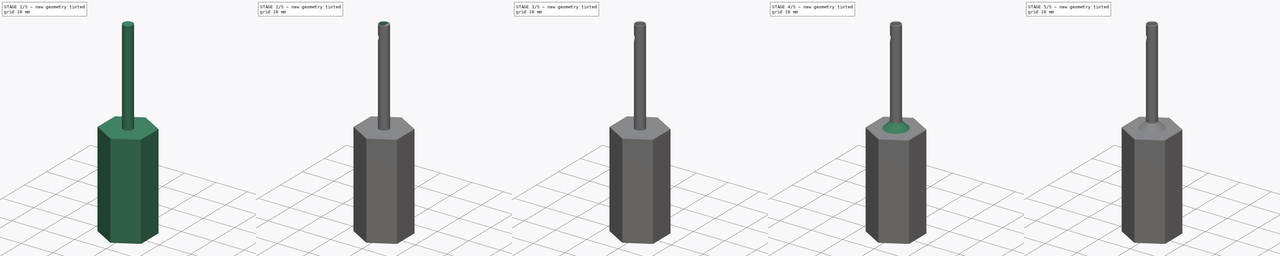
[diagram: build sequence overview — one tinted view per stage of 5, left to right]
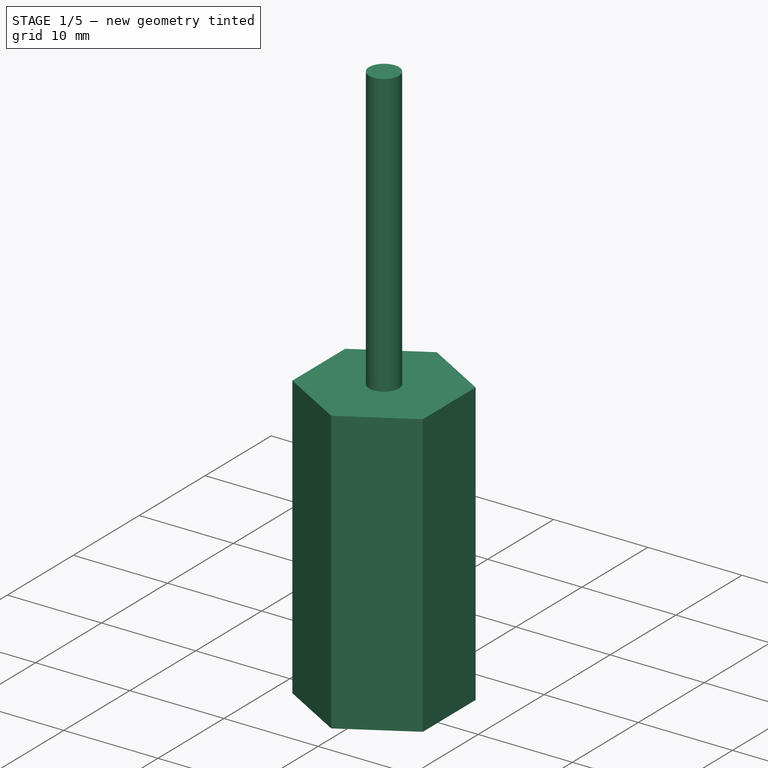
[diagram: stage 1 of 5 — iso view after this stage's code; geometry added in this stage tinted green]
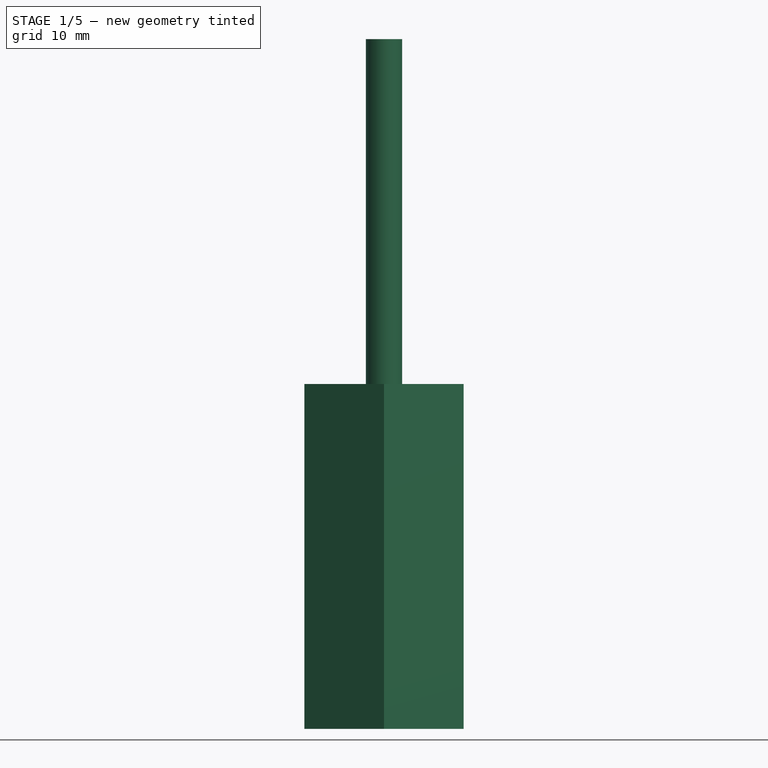
[diagram: stage 1 of 5 — front view after this stage's code; geometry added in this stage tinted green]
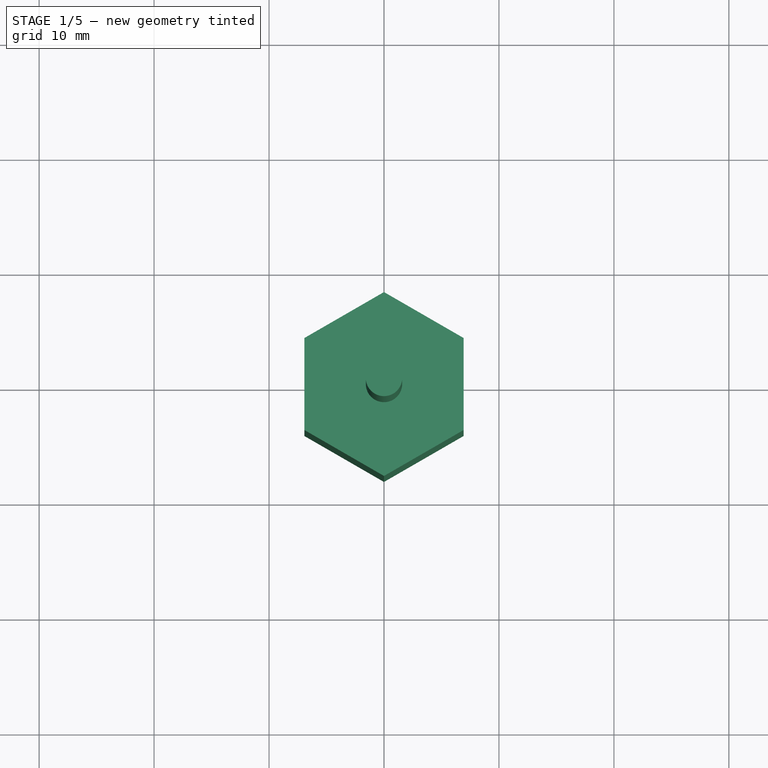
[diagram: stage 1 of 5 — top view after this stage's code; geometry added in this stage tinted green]
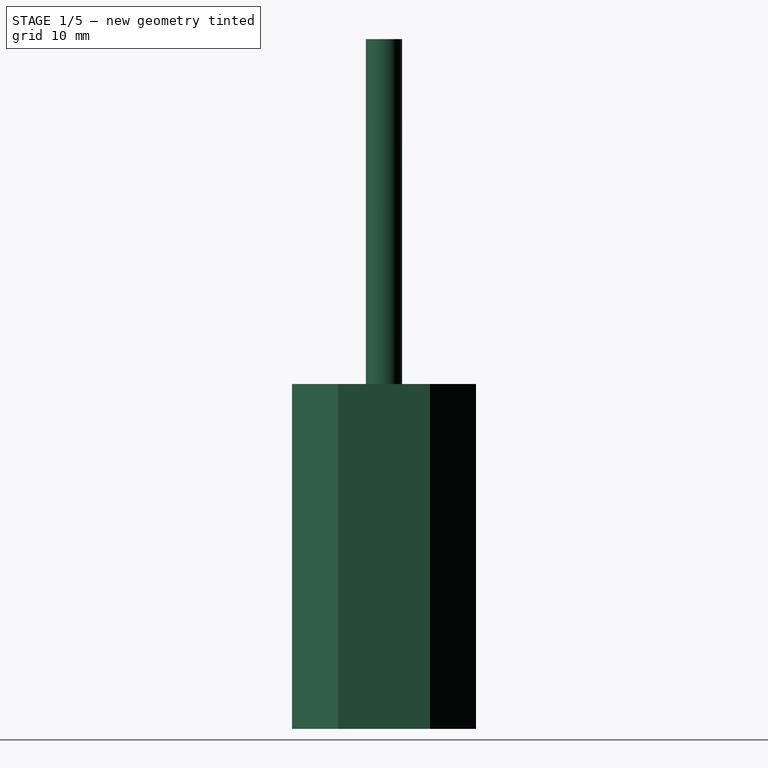
[diagram: stage 1 of 5 — right view after this stage's code; geometry added in this stage tinted green]
FCSTD DOCUMENT  (FreeCAD 0.18R16146 (Git))
Label: wire_wrap_tool
License: All rights reserved
LicenseURL: http://en.wikipedia.org/wiki/All_rights_reserved
objects: Sketcher::SketchObject×8, PartDesign::Pocket×6, PartDesign::Fillet×5, PartDesign::Chamfer×3, PartDesign::Pad×2, PartDesign::Body×1, Part::Feature×1
note: 34 computed .brp shape members not serialized (recipe doc carries the construction recipe); baked Part::Feature solids carry a one-line shape summary decoded from their .brp

FEATURE [Sketcher::SketchObject] Sketch
  MapMode = 5
  Support = -> [XY_Plane]
  sketch-geometry (7):
    g0: LineSegment StartX=6.9282 StartY=-4 StartZ=0 EndX=6.9282 EndY=4 EndZ=0
    g1: LineSegment StartX=6.9282 StartY=4 StartZ=0 EndX=1.33e-14 EndY=8 EndZ=0
    g2: LineSegment StartX=1.33e-14 StartY=8 StartZ=0 EndX=-6.9282 EndY=4 EndZ=0
    g3: LineSegment StartX=-6.9282 StartY=4 StartZ=0 EndX=-6.9282 EndY=-4 EndZ=0
    g4: LineSegment StartX=-6.9282 StartY=-4 StartZ=0 EndX=1.42e-14 EndY=-8 EndZ=0
    g5: LineSegment StartX=1.42e-14 StartY=-8 StartZ=0 EndX=6.9282 EndY=-4 EndZ=0
    g6: Circle [constr] CenterX=0 CenterY=0 CenterZ=0 NormalX=0 NormalY=0 NormalZ=1 AngleXU=0 Radius=8
  constraints (16):
    c: Coincident(g0,g1)
    c: Coincident(g1,g2)
    c: Coincident(g2,g3)
    c: Coincident(g3,g4)
    c: Coincident(g4,g5)
    c: Coincident(g5,g0)
    c: Equal(g0, g1-g5) x5
    c: PointOnObject(g0,g6)
    c: PointOnObject(g1,g6)
    c: PointOnObject(g2,g6)
    c: PointOnObject(g3,g6)
    c: PointOnObject(g4,g6)
    c: PointOnObject(g5,g6)
    c: Coincident(g-1,g6)
    c: Vertical(g0)
    c: DistanceY(g0,g0) = 8
FEATURE [PartDesign::Pad] Pad
  Length = 30
  Length2 = 100
  Profile = -> Sketch
  Type = 0
FEATURE [Sketcher::SketchObject] Sketch001
  MapMode = 5
  Placement = pos=(0,0,30) rot=(0,0,1;0rad)
  Support = -> [Pad]
  sketch-geometry (1):
    g0: Circle CenterX=0 CenterY=0 CenterZ=0 NormalX=0 NormalY=0 NormalZ=1 AngleXU=0 Radius=1.58
  constraints (2):
    c: Coincident(g0,g-1)
    c: Radius(g0) = 1.58
FEATURE [PartDesign::Pad] Pad001
  BaseFeature = -> Pad
  Length = 30
  Length2 = 100
  Profile = -> Sketch001
  Type = 0
FEATURE [Sketcher::SketchObject] Sketch004
  MapMode = 5
  Placement = pos=(0,0,60) rot=(0,0,1;0rad)
  sketch-geometry (1):
    g0: Circle CenterX=0 CenterY=0 CenterZ=0 NormalX=0 NormalY=0 NormalZ=1 AngleXU=0 Radius=1.28
  constraints (2):
    c: Radius(g0) = 1.28
    c: Coincident(g0,g-1)
FEATURE [Sketcher::SketchObject] Sketch005
  MapMode = 5
  Placement = pos=(0,0,58.8) rot=(0,0,1;0rad)
  sketch-geometry (2):
    g0: ArcOfCircle CenterX=0 CenterY=0 CenterZ=0 NormalX=0 NormalY=0 NormalZ=1 AngleXU=0 Radius=1.28 StartAngle=2.17768 EndAngle=4.1055
    g1: LineSegment StartX=-0.73 StartY=-1.05143 StartZ=0 EndX=-0.73 EndY=1.05143 EndZ=0
  constraints (6):
    c: Coincident(g1,g0)
    c: Coincident(g1,g0)
    c: Coincident(g0,g-1)
    c: Vertical(g1)
    c: Radius(g0) = 1.28
    c: Distance(g0,g1) = 0.73
FEATURE [Sketcher::SketchObject] Sketch006
  AttachmentOffset = pos=(0,0,-2) rot=(0,0,1;0rad)
  MapMode = 5
  Placement = pos=(0,0,56.8) rot=(0,0,1;0rad)
  sketch-geometry (2):
    g0: ArcOfCircle CenterX=0 CenterY=0 CenterZ=0 NormalX=0 NormalY=0 NormalZ=1 AngleXU=0 Radius=1.6 StartAngle=2.04457 EndAngle=4.23861
    g1: LineSegment StartX=-0.73 StartY=-1.42376 StartZ=0 EndX=-0.73 EndY=1.42376 EndZ=0
  constraints (6):
    c: Coincident(g1,g0)
    c: Coincident(g1,g0)
    c: Coincident(g0,g-1)
    c: Vertical(g1)
    c: Radius(g0) = 1.6
    c: Distance(g0,g1) = 0.73
FEATURE [Sketcher::SketchObject] Sketch007
  MapMode = 5
  Placement = pos=(0,0,55.3) rot=(0,0,1;0rad)
  sketch-geometry (4):
    g0: LineSegment StartX=-1.1 StartY=0.14 StartZ=0 EndX=-1.6 EndY=0.14 EndZ=0
    g1: LineSegment StartX=-1.6 StartY=0.14 StartZ=0 EndX=-1.6 EndY=-0.14 EndZ=0
    g2: LineSegment StartX=-1.6 StartY=-0.14 StartZ=0 EndX=-1.1 EndY=-0.14 EndZ=0
    g3: ArcOfCircle CenterX=-1.1 CenterY=0 CenterZ=0 NormalX=0 NormalY=0 NormalZ=1 AngleXU=0 Radius=0.14 StartAngle=4.71238 EndAngle=7.85399
  constraints (13):
    c: Coincident(g0,g1)
    c: Coincident(g1,g2)
    c: Horizontal(g0)
    c: Horizontal(g2)
    c: Vertical(g1)
    c: Coincident(g3,g2)
    c: Coincident(g3,g0)
    c: Equal(g0,g2)
    c: PointOnObject(g3,g-1)
    c: DistanceY(g2,g0) = 0.28
    c: DistanceX(g0,g0) = 0.5
    c: Radius(g3) = 0.14
    c: DistanceX(g3,g-1) = 1.1
FEATURE [PartDesign::Pocket] Pocket003
  BaseFeature = -> Pad001
  Length = 22
  Length2 = 100
  Profile = -> Sketch007
  Type = 0
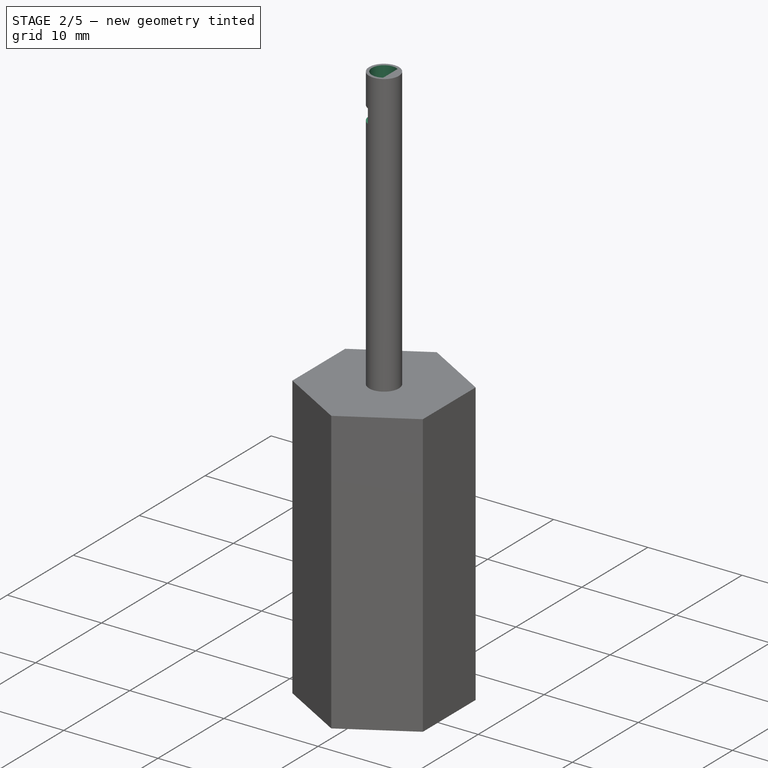
[diagram: stage 2 of 5 — iso view after this stage's code; geometry added in this stage tinted green]
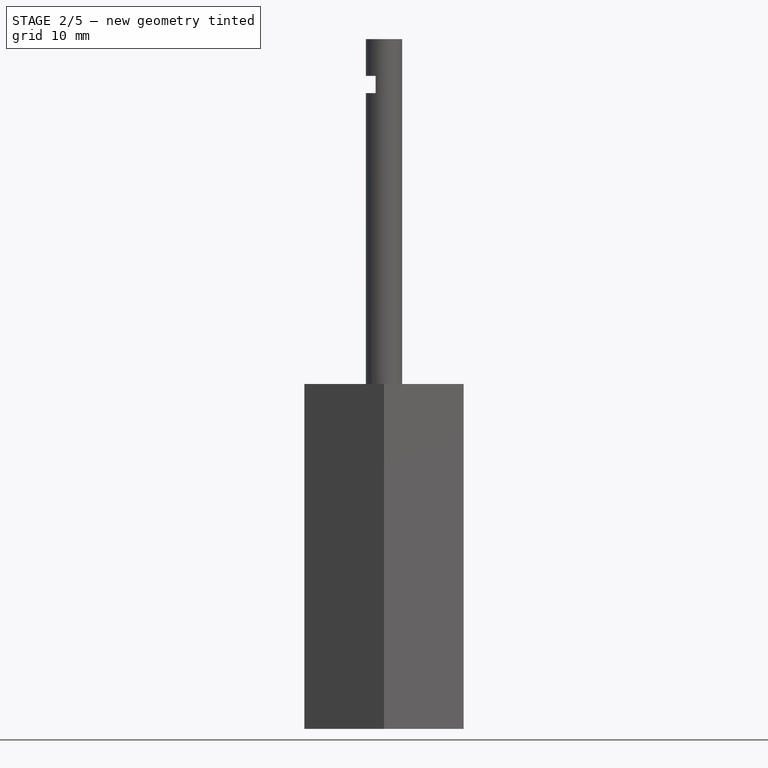
[diagram: stage 2 of 5 — front view after this stage's code; geometry added in this stage tinted green]
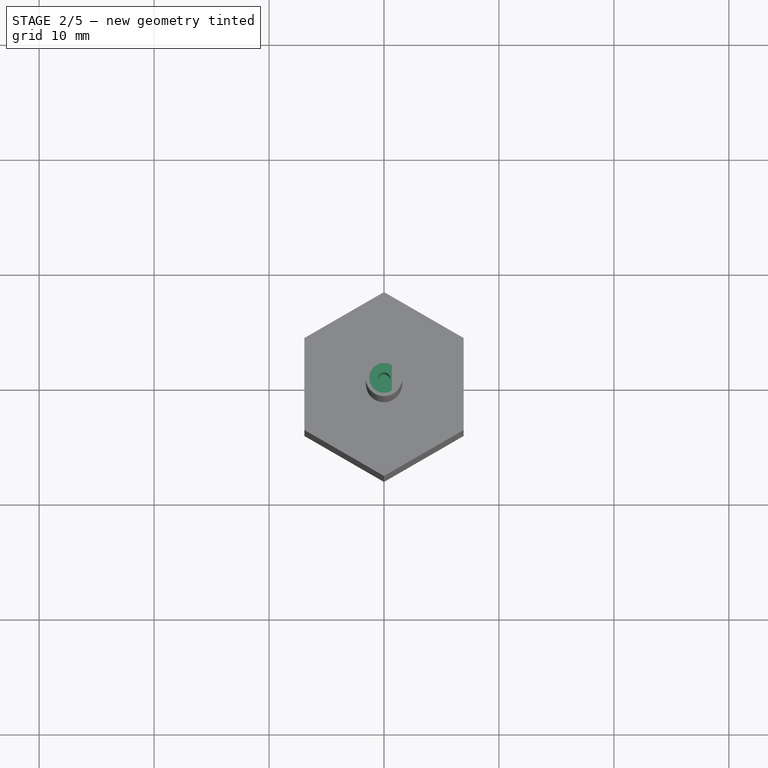
[diagram: stage 2 of 5 — top view after this stage's code; geometry added in this stage tinted green]
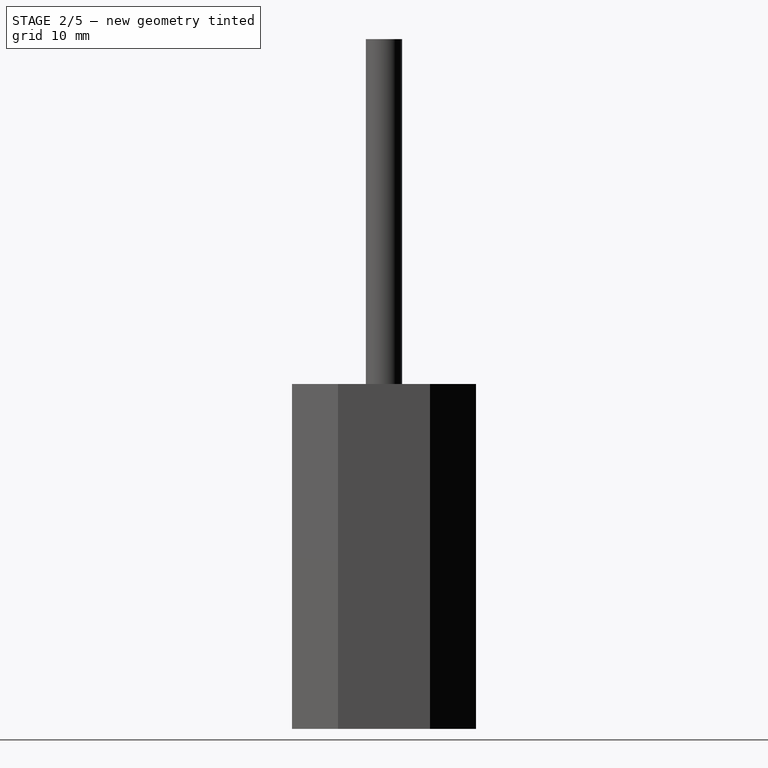
[diagram: stage 2 of 5 — right view after this stage's code; geometry added in this stage tinted green]
FEATURE [Sketcher::SketchObject] Sketch003
  MapMode = 5
  Placement = pos=(0,0,60) rot=(0,0,1;0rad)
  sketch-geometry (2):
    g0: LineSegment StartX=0.68 StartY=1.08444 StartZ=0 EndX=0.68 EndY=-1.08444 EndZ=0
    g1: ArcOfCircle CenterX=0 CenterY=0 CenterZ=0 NormalX=0 NormalY=0 NormalZ=1 AngleXU=0 Radius=1.28 StartAngle=1.01072 EndAngle=5.27246
  constraints (6):
    c: Coincident(g1,g-1)
    c: Coincident(g0,g1)
    c: Coincident(g1,g0)
    c: Radius(g1) = 1.28
    c: Distance(g1,g0) = 0.68
    c: Vertical(g0)
FEATURE [Sketcher::SketchObject] Sketch002
  MapMode = 5
  Placement = pos=(0,0,60) rot=(0,0,1;0rad)
  Support = -> [Pad001]
  sketch-geometry (1):
    g0: Circle CenterX=0 CenterY=0 CenterZ=0 NormalX=0 NormalY=0 NormalZ=1 AngleXU=0 Radius=0.52
  constraints (2):
    c: Coincident(g0,g-1)
    c: Radius(g0) = 0.52
FEATURE [PartDesign::Pocket] Pocket
  BaseFeature = -> Pocket003
  Length = 1.5
  Length2 = 100
  Profile = -> Sketch006
  Type = 0
FEATURE [PartDesign::Pocket] Pocket004
  BaseFeature = -> Pocket
  Length = 12
  Length2 = 100
  Profile = -> Sketch002
  Type = 0
FEATURE [PartDesign::Pocket] Pocket005
  BaseFeature = -> Pocket004
  Length = 1.2
  Length2 = 100
  Profile = -> Sketch003
  Type = 0
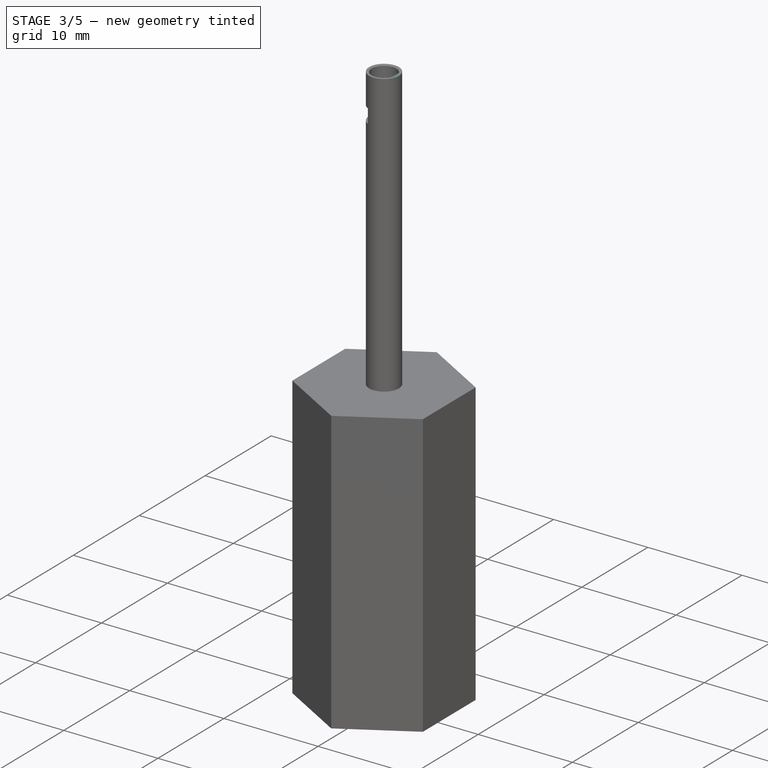
[diagram: stage 3 of 5 — iso view after this stage's code; geometry added in this stage tinted green]
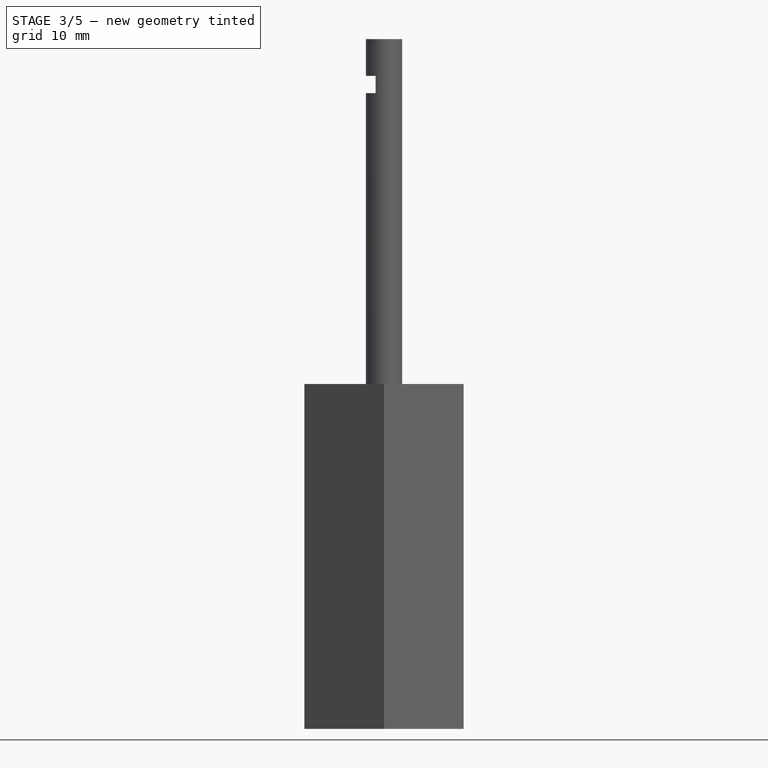
[diagram: stage 3 of 5 — front view after this stage's code; geometry added in this stage tinted green]
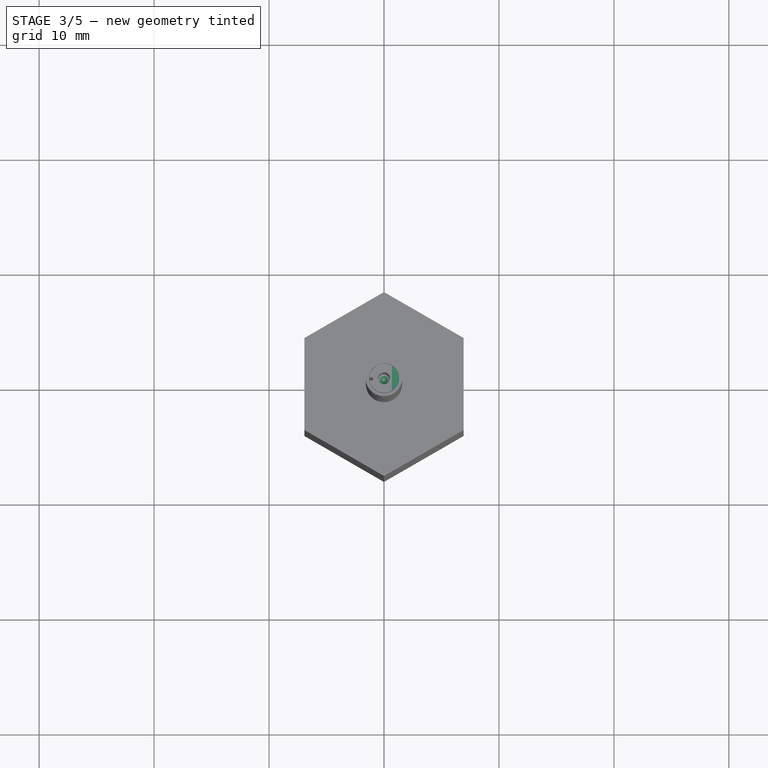
[diagram: stage 3 of 5 — top view after this stage's code; geometry added in this stage tinted green]
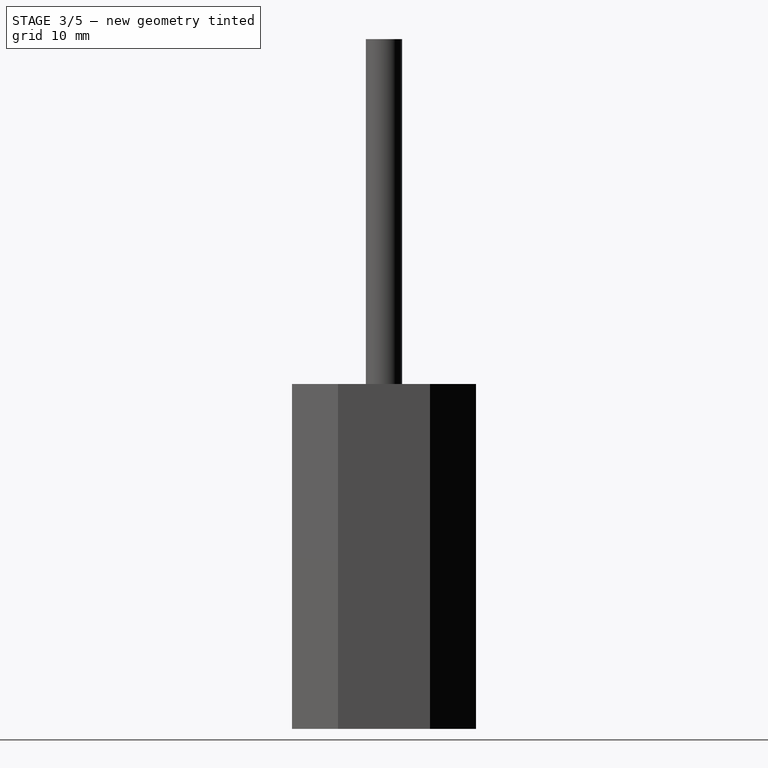
[diagram: stage 3 of 5 — right view after this stage's code; geometry added in this stage tinted green]
FEATURE [PartDesign::Pocket] Pocket006
  BaseFeature = -> Pocket005
  Length = 2
  Length2 = 100
  Profile = -> Sketch005
  Type = 0
FEATURE [PartDesign::Pocket] Pocket007
  BaseFeature = -> Pocket006
  Length = 0.4
  Length2 = 100
  Profile = -> Sketch004
  Type = 0
FEATURE [PartDesign::Chamfer] Chamfer
  Base = -> Pocket007 [Edge64]
  BaseFeature = -> Pocket007
  Size = 0.5
FEATURE [PartDesign::Fillet] Fillet
  Base = -> Chamfer [Edge18]
  BaseFeature = -> Chamfer
  Radius = 0.08
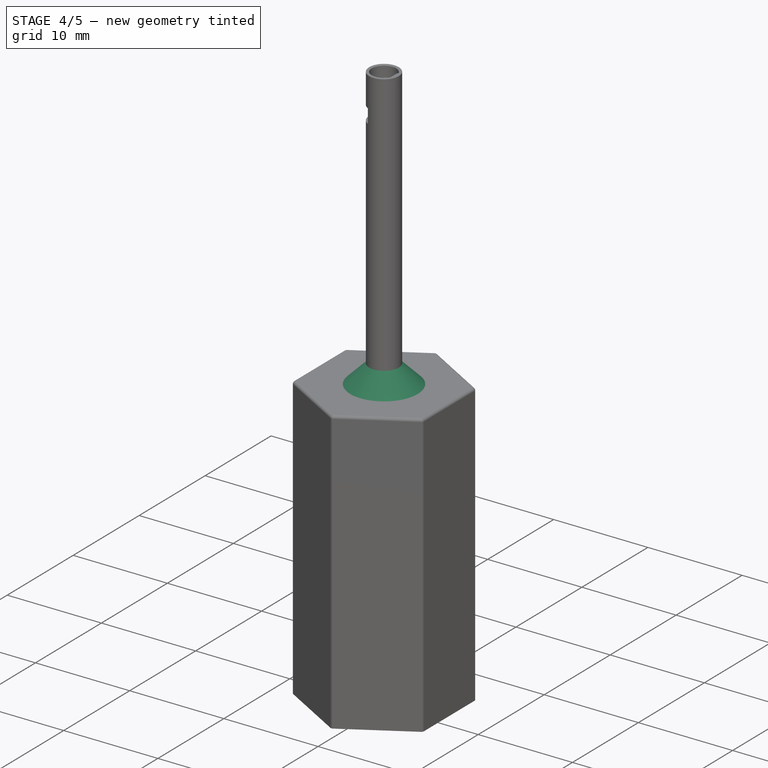
[diagram: stage 4 of 5 — iso view after this stage's code; geometry added in this stage tinted green]
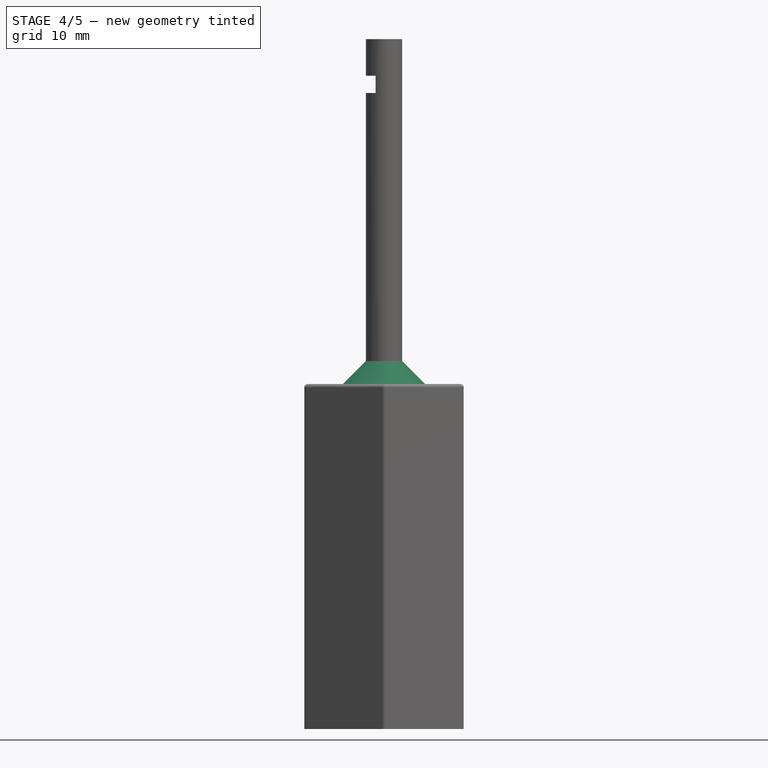
[diagram: stage 4 of 5 — front view after this stage's code; geometry added in this stage tinted green]
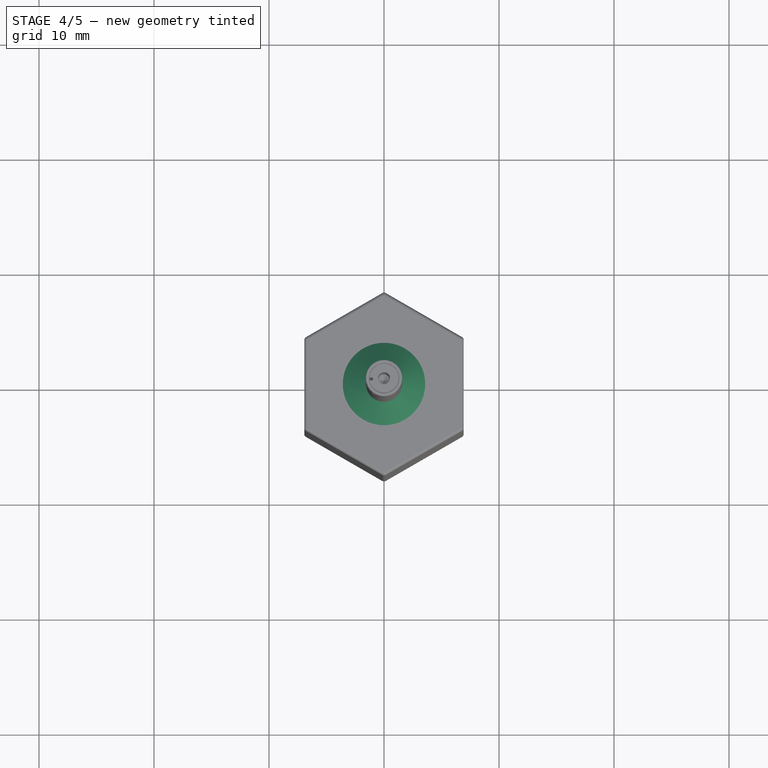
[diagram: stage 4 of 5 — top view after this stage's code; geometry added in this stage tinted green]
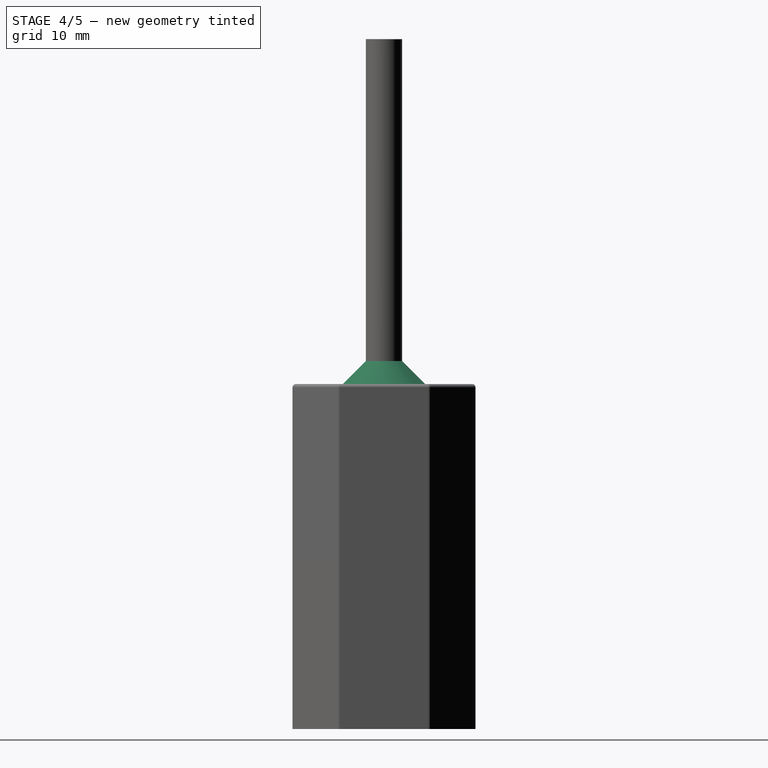
[diagram: stage 4 of 5 — right view after this stage's code; geometry added in this stage tinted green]
FEATURE [PartDesign::Fillet] Fillet006002
  Base = -> Fillet [Edge22]
  BaseFeature = -> Fillet
  Radius = 0.05
FEATURE [PartDesign::Fillet] Fillet006003
  Base = -> Fillet006002 [Edge31,Edge33,Edge34,Edge32,Edge30,Edge29,Edge55,Edge59,Edge63,Edge61,Edge57,Edge54]
  BaseFeature = -> Fillet006002
  Radius = 0.3
FEATURE [PartDesign::Chamfer] Chamfer001
  Base = -> Fillet006003 [Edge7]
  BaseFeature = -> Fillet006003
  Size = 2
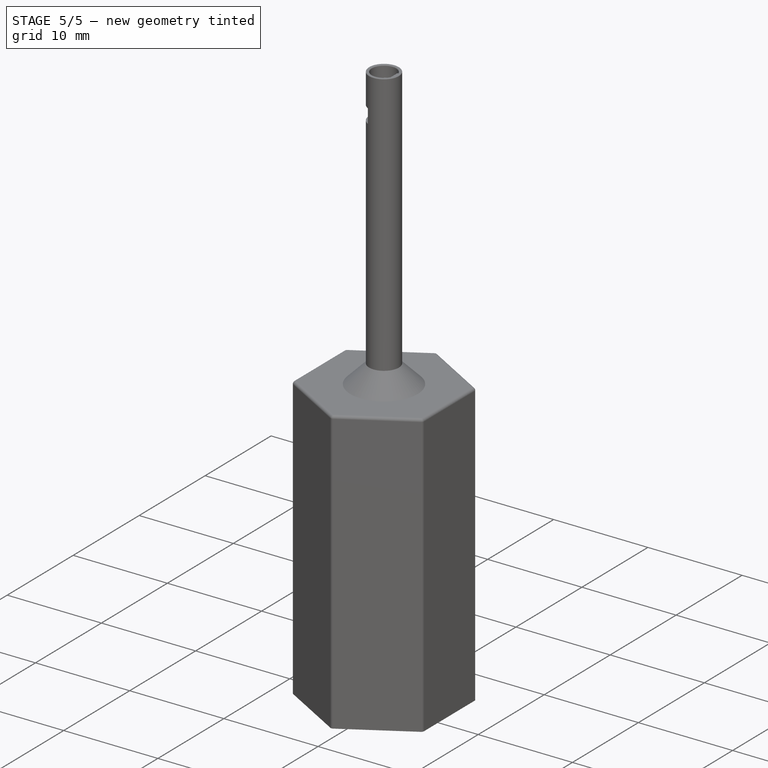
[diagram: stage 5 of 5 — iso view after this stage's code; geometry added in this stage tinted green]
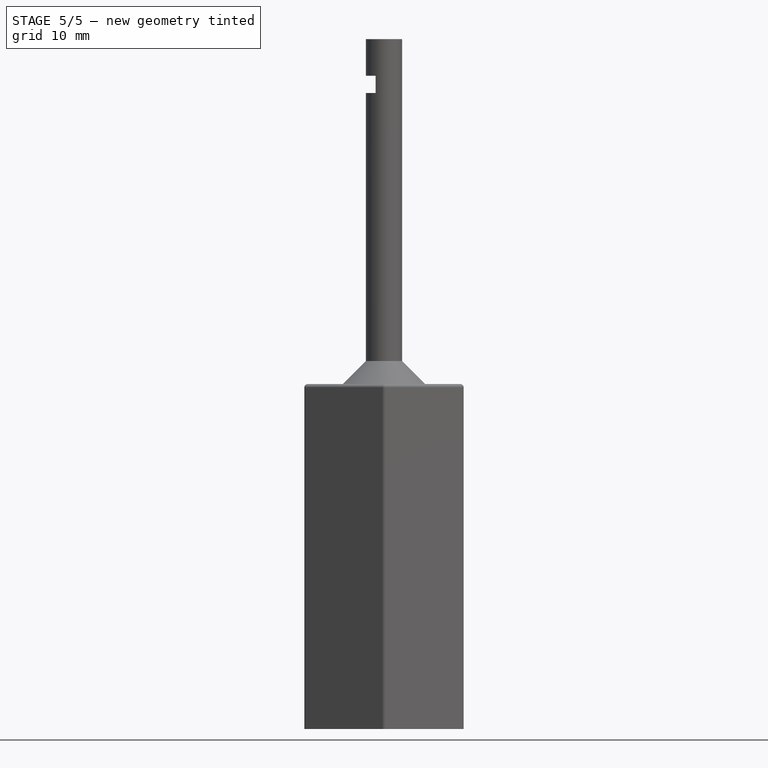
[diagram: stage 5 of 5 — front view after this stage's code; geometry added in this stage tinted green]
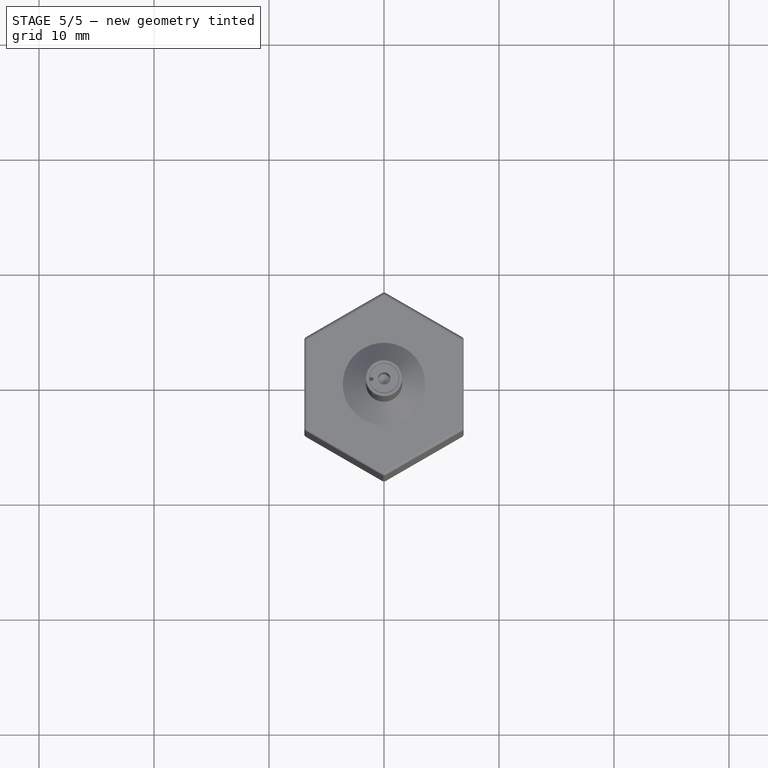
[diagram: stage 5 of 5 — top view after this stage's code; geometry added in this stage tinted green]
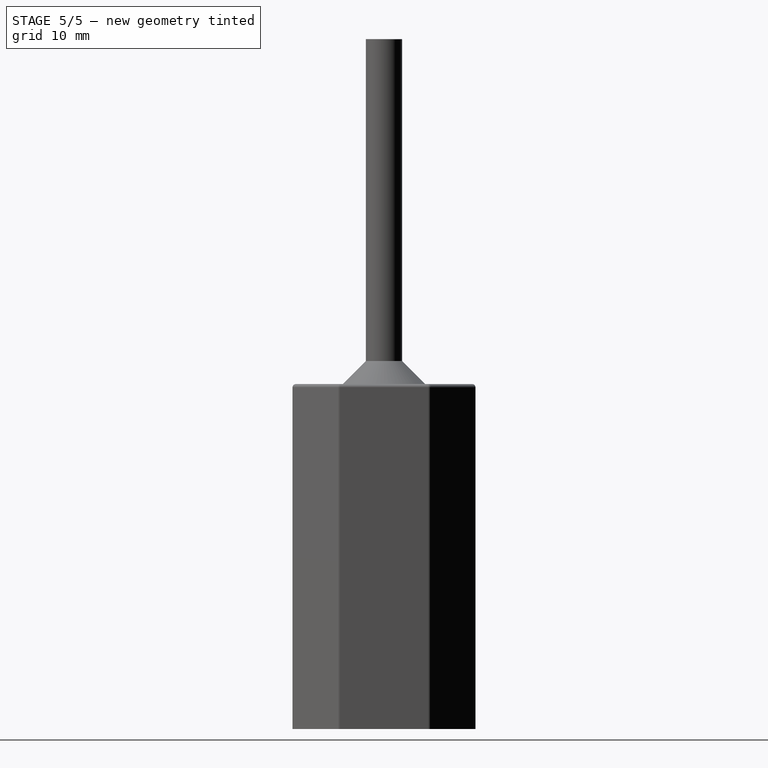
[diagram: stage 5 of 5 — right view after this stage's code; geometry added in this stage tinted green]
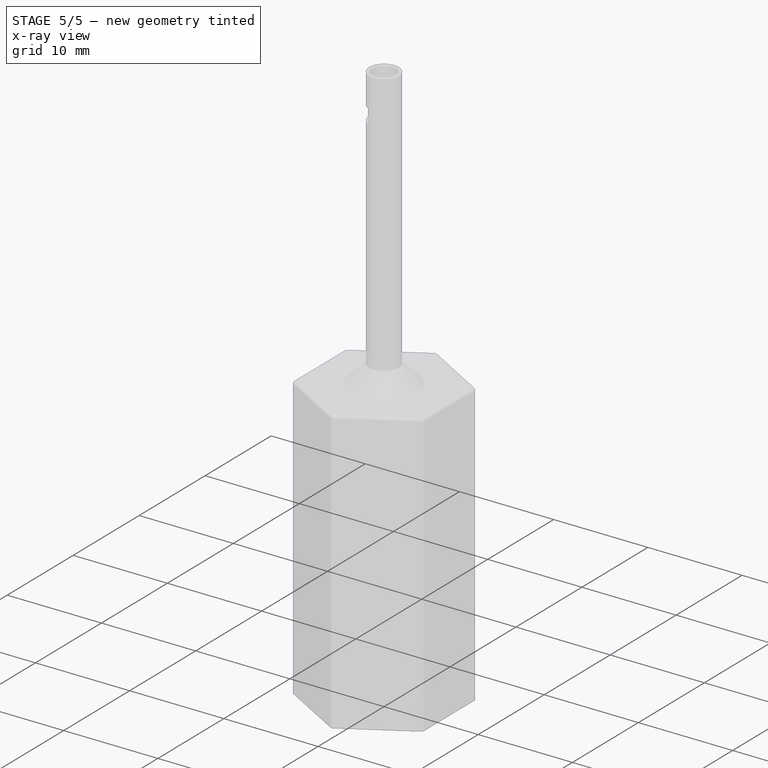
[diagram: stage 5 of 5 — x-ray composite at the iso view; earlier geometry ghosted, this stage's added geometry solid]
FEATURE [PartDesign::Chamfer] Chamfer002
  Base = -> Chamfer001 [Edge31]
  BaseFeature = -> Chamfer001
  Size = 0.46
FEATURE [PartDesign::Fillet] Fillet006004
  Base = -> Chamfer002 [Edge22,Edge21,Edge17]
  BaseFeature = -> Chamfer002
  Radius = 0.05
FEATURE [PartDesign::Fillet] Fillet006005
  Base = -> Fillet006004 [Edge57]
  BaseFeature = -> Fillet006004
  Radius = 0.05
FEATURE [PartDesign::Body] Body
  Group = -> [Sketch,Pad,Sketch001,Pad001,Sketch002,Sketch003,Sketch004,Sketch005,Sketch006,Sketch007,Pocket003,Pocket,Pocket004,Pocket005,Pocket006,Pocket007,Chamfer,Fillet,Fillet006002,Fillet006003,Chamfer001,Chamfer002,Fillet006004,Fillet006005]
  Origin = -> Origin
  Tip = -> Fillet006005
FEATURE [Part::Feature] Fillet006005001  label="wire_wrap_v1_1"
  shape: bbox 13.86 x 15.91 x 60 mm, 52 faces (baked)
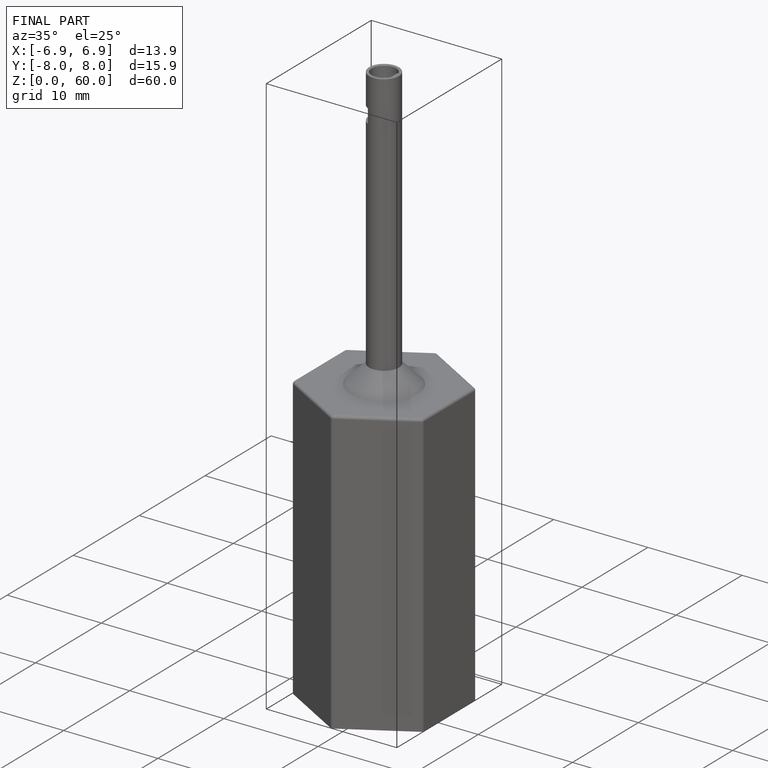
[diagram: finished part — iso view with bounding-box wireframe]
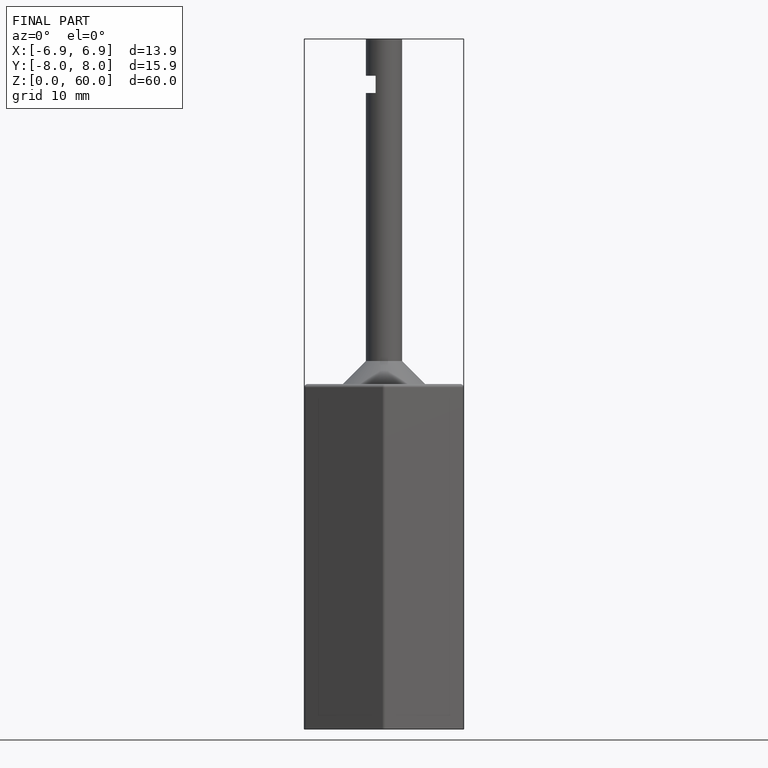
[diagram: finished part — front view with bounding-box wireframe]
